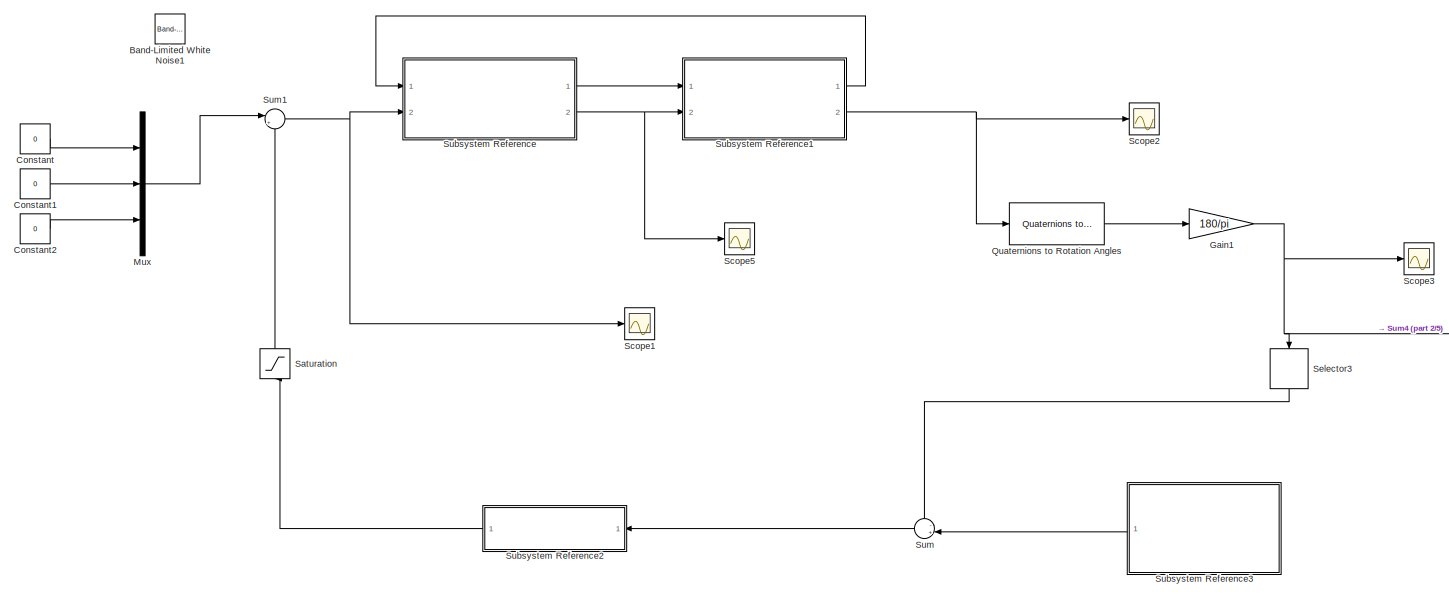
[diagram: root canvas - part 1/5, top left region]
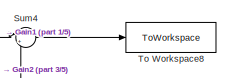
[diagram: root canvas - part 2/5, middle right region]
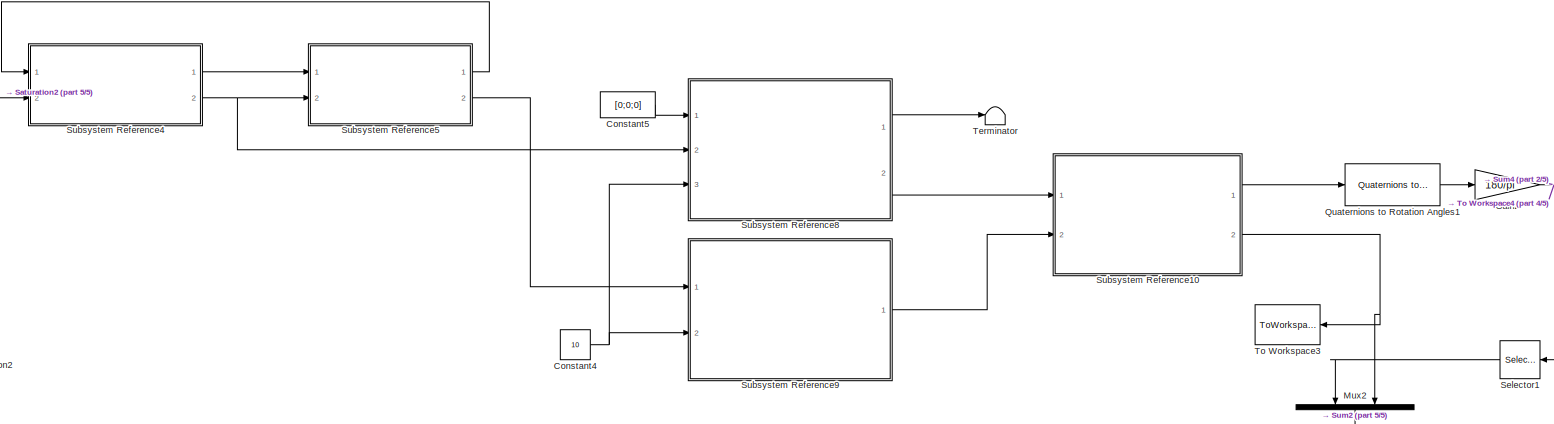
[diagram: root canvas - part 3/5, central region]
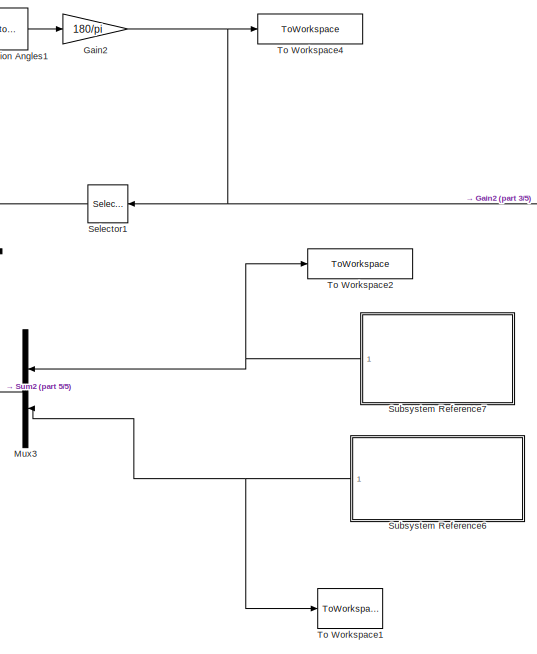
[diagram: root canvas - part 4/5, bottom right region]
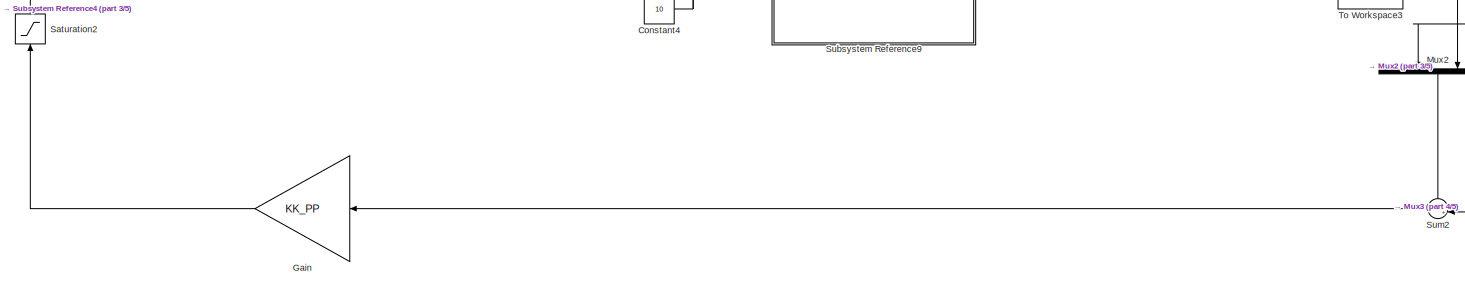
[diagram: root canvas - part 5/5, bottom center region]
MODEL slx_e4dfe3e99f78
KIND model
CONFIG AbsTol = auto
CONFIG EnableMultiTasking = off
CONFIG FixedStep = auto
CONFIG MaxStep = auto
CONFIG MinStep = auto
CONFIG RelTol = 1e-3
CONFIG SampleTimeConstraint = Unconstrained
CONFIG SolverName = VariableStepAuto
CONFIG StartTime = 0.0
CONFIG StopTime = 200
BLOCK [Reference] Band-Limited White Noise1  REF=simulink/Sources/Band-Limited
White Noise
  Ports = [0, 1]
  SourceBlock = simulink/Sources/Band-Limited\nWhite Noise
  SourceProductBaseCode = SL
  SourceType = Band-Limited White Noise.
BLOCK [Constant] Constant
  Value = 0
BLOCK [Constant] Constant1
  Value = 0
BLOCK [Constant] Constant2
  Value = 0
BLOCK [Constant] Constant4
  Value = 10
BLOCK [Constant] Constant5
  Value = [0;0;0]
BLOCK [Gain] Gain
  Gain = KK_PP
  Multiplication = Matrix(K*u)
  NameLocation = top
BLOCK [Gain] Gain1
  Gain = 180/pi
BLOCK [Gain] Gain2
  Gain = 180/pi
BLOCK [Mux] Mux
  DisplayOption = bar
  Inputs = 3
  Ports = [3, 1]
BLOCK [Mux] Mux2
  DisplayOption = bar
  Inputs = 2
  NameLocation = left
  Ports = [2, 1]
BLOCK [Mux] Mux3
  DisplayOption = bar
  Inputs = 2
  NameLocation = top
  Ports = [2, 1]
BLOCK [Reference] Quaternions to Rotation Angles  REF=sharedtransform/Quaternions to Rotation Angles
  AttributesFormatString = Rotation Order: %<rotationOrder>
  Ports = [1, 1]
  SourceBlock = sharedtransform/Quaternions to Rotation Angles
  SourceProductBaseCode = AE,PW,DR,MT,UV,VE
  SourceType = Quat2Ang
BLOCK [Reference] Quaternions to Rotation Angles1  REF=sharedtransform/Quaternions to Rotation Angles
  AttributesFormatString = Rotation Order: %<rotationOrder>
  Ports = [1, 1]
  SourceBlock = sharedtransform/Quaternions to Rotation Angles
  SourceProductBaseCode = AE,PW,DR,MT,UV,VE
  SourceType = Quat2Ang
BLOCK [Saturate] Saturation
  LowerLimit = -Tmax
  NameLocation = right
  UpperLimit = Tmax
BLOCK [Saturate] Saturation2
  LowerLimit = -Tmax
  NameLocation = right
  UpperLimit = Tmax
BLOCK [Scope] Scope1
  Floating = off
  NumInputPorts = 1
  Ports = [1]
  ScopeSpecificationString = Simulink.scopes.TimeScopeBlockCfg('CurrentConfiguration', extmgr.ConfigurationSet(extmgr.Configuration('Core','General UI',true),extmgr.Configuration('Core','Source UI',true),extmgr.Configuration('Sources','WiredSimulink',true,'DataLoggingVariableName','ScopeData1'),extmgr.Configuration('Visuals','Time Domain',true,'SerializedDisplays',{struct('MinYLimReal','-0.00156','MaxYLimReal','0.00156','YLab...<+1490ch>
BLOCK [Scope] Scope2
  Floating = off
  NumInputPorts = 1
  Ports = [1]
  ScopeSpecificationString = Simulink.scopes.TimeScopeBlockCfg('CurrentConfiguration', extmgr.ConfigurationSet(extmgr.Configuration('Core','General UI',true),extmgr.Configuration('Core','Source UI',true),extmgr.Configuration('Sources','WiredSimulink',true,'DataLoggingVariableName','ScopeData2'),extmgr.Configuration('Visuals','Time Domain',true,'SerializedDisplays',{struct('MinYLimReal','-0.23996','MaxYLimReal','1.13777','YLab...<+1464ch>
BLOCK [Scope] Scope3
  Floating = off
  NumInputPorts = 1
  Ports = [1]
  ScopeSpecificationString = Simulink.scopes.TimeScopeBlockCfg('CurrentConfiguration', extmgr.ConfigurationSet(extmgr.Configuration('Core','General UI',true),extmgr.Configuration('Core','Source UI',true),extmgr.Configuration('Sources','WiredSimulink',true,'DataLoggingVariableName','ScopeData3'),extmgr.Configuration('Visuals','Time Domain',true,'SerializedDisplays',{struct('MinYLimReal','-1.62883','MaxYLimReal','14.6595','YLab...<+1460ch>
BLOCK [Scope] Scope5
  Floating = off
  NumInputPorts = 1
  Ports = [1]
  ScopeSpecificationString = Simulink.scopes.TimeScopeBlockCfg('CurrentConfiguration', extmgr.ConfigurationSet(extmgr.Configuration('Core','General UI',true),extmgr.Configuration('Core','Source UI',true),extmgr.Configuration('Sources','WiredSimulink',true,'DataLoggingVariableName','ScopeData5'),extmgr.Configuration('Visuals','Time Domain',true,'SerializedDisplays',{struct('MinYLimReal','-0.00823','MaxYLimReal','0.03819','YLab...<+1476ch>
BLOCK [Selector] Selector1
  IndexOptions = Index vector (dialog)
  Indices = [3 2 1]
  InputPortWidth = 3
  NameLocation = top
  OutputSizes = 1
  Ports = [1, 1]
BLOCK [Selector] Selector3
  IndexOptions = Index vector (dialog)
  Indices = [3 2 1]
  InputPortWidth = 3
  NameLocation = left
  OutputSizes = 1
  Ports = [1, 1]
BLOCK [SubSystem] Subsystem Reference
  Ports = [2, 2]
  ReferencedSubsystem = Dynamics
  RequestExecContextInheritance = off
BLOCK [SubSystem] Subsystem Reference1
  Ports = [2, 2]
  ReferencedSubsystem = Kinematics
  RequestExecContextInheritance = off
BLOCK [SubSystem] Subsystem Reference10
  Ports = [2, 2]
  ReferencedSubsystem = NavigationSolution
  RequestExecContextInheritance = off
BLOCK [SubSystem] Subsystem Reference2
  NameLocation = top
  Ports = [1, 1]
  ReferencedSubsystem = PID
  RequestExecContextInheritance = off
BLOCK [SubSystem] Subsystem Reference3
  NameLocation = top
  Ports = [0, 1]
  ReferencedSubsystem = ThreeAxesSignals
  RequestExecContextInheritance = off
BLOCK [SubSystem] Subsystem Reference4
  Ports = [2, 2]
  ReferencedSubsystem = Dynamics
  RequestExecContextInheritance = off
BLOCK [SubSystem] Subsystem Reference5
  Ports = [2, 2]
  ReferencedSubsystem = Kinematics
  RequestExecContextInheritance = off
BLOCK [SubSystem] Subsystem Reference6
  NameLocation = top
  Ports = [0, 1]
  ReferencedSubsystem = AngVelocitySignals
  RequestExecContextInheritance = off
BLOCK [SubSystem] Subsystem Reference7
  NameLocation = top
  Ports = [0, 1]
  ReferencedSubsystem = ThreeAxesSignals
  RequestExecContextInheritance = off
BLOCK [SubSystem] Subsystem Reference8
  Ports = [3, 2]
  ReferencedSubsystem = IMU
  RequestExecContextInheritance = off
BLOCK [SubSystem] Subsystem Reference9
  Ports = [2, 1]
  ReferencedSubsystem = StarTracker
  RequestExecContextInheritance = off
BLOCK [Sum] Sum
  Inputs = -+|
  NameLocation = top
  Ports = [2, 1]
BLOCK [Sum] Sum1
  Inputs = |++
  Ports = [2, 1]
BLOCK [Sum] Sum2
  Inputs = -+|
  NameLocation = top
  Ports = [2, 1]
BLOCK [Sum] Sum4
  Inputs = |+-
  Ports = [2, 1]
BLOCK [Terminator] Terminator
BLOCK [ToWorkspace] To Workspace1
  FixptAsFi = on
  MaxDataPoints = inf
  Ports = [1]
  SampleTime = -1
  SaveFormat = Timeseries
  VariableName = omega_step
BLOCK [ToWorkspace] To Workspace2
  FixptAsFi = on
  MaxDataPoints = inf
  Ports = [1]
  SampleTime = -1
  SaveFormat = Timeseries
  VariableName = euler_angles_ramp
BLOCK [ToWorkspace] To Workspace3
  FixptAsFi = on
  MaxDataPoints = inf
  NameLocation = top
  Ports = [1]
  SampleTime = -1
  SaveFormat = Timeseries
  VariableName = omega_nav
BLOCK [ToWorkspace] To Workspace4
  FixptAsFi = on
  MaxDataPoints = inf
  Ports = [1]
  SampleTime = -1
  SaveFormat = Timeseries
  VariableName = euler_angles_nav
BLOCK [ToWorkspace] To Workspace8
  FixptAsFi = on
  MaxDataPoints = inf
  Ports = [1]
  SampleTime = -1
  SaveFormat = Timeseries
  VariableName = errors
LINE Constant1:1 -> Mux:2
LINE Constant2:1 -> Mux:3
NET Constant4:1 -> Subsystem Reference8:3, Subsystem Reference9:2
LINE Constant5:1 -> Subsystem Reference8:1
LINE Constant:1 -> Mux:1
NET Gain1:1 -> Scope3:1, Selector3:1, Sum4:1
NET Gain2:1 -> Selector1:1, Sum4:2, To Workspace4:1
LINE Gain:1 -> Saturation2:1
LINE Mux2:1 -> Sum2:1
LINE Mux3:1 -> Sum2:2
LINE Mux:1 -> Sum1:1
LINE Quaternions to Rotation Angles1:1 -> Gain2:1
LINE Quaternions to Rotation Angles:1 -> Gain1:1
LINE Saturation2:1 -> Subsystem Reference4:2
LINE Saturation:1 -> Sum1:2
LINE Selector1:1 -> Mux2:1
LINE Selector3:1 -> Sum:1
LINE Subsystem Reference10:1 -> Quaternions to Rotation Angles1:1
NET Subsystem Reference10:2 -> Mux2:2, To Workspace3:1
LINE Subsystem Reference1:1 -> Subsystem Reference:1
NET Subsystem Reference1:2 -> Quaternions to Rotation Angles:1, Scope2:1
LINE Subsystem Reference2:1 -> Saturation:1
LINE Subsystem Reference3:1 -> Sum:2
LINE Subsystem Reference4:1 -> Subsystem Reference5:1
NET Subsystem Reference4:2 -> Subsystem Reference5:2, Subsystem Reference8:2
LINE Subsystem Reference5:1 -> Subsystem Reference4:1
LINE Subsystem Reference5:2 -> Subsystem Reference9:1
NET Subsystem Reference6:1 -> Mux3:2, To Workspace1:1
NET Subsystem Reference7:1 -> Mux3:1, To Workspace2:1
LINE Subsystem Reference8:1 -> Terminator:1
LINE Subsystem Reference8:2 -> Subsystem Reference10:1
LINE Subsystem Reference9:1 -> Subsystem Reference10:2
LINE Subsystem Reference:1 -> Subsystem Reference1:1
NET Subsystem Reference:2 -> Scope5:1, Subsystem Reference1:2
NET Sum1:1 -> Scope1:1, Subsystem Reference:2
LINE Sum2:1 -> Gain:1
LINE Sum4:1 -> To Workspace8:1
LINE Sum:1 -> Subsystem Reference2:1
note: NET lines group one-source signal fan-out (src -> all destinations, sorted); 1:1 wires keep LINE
